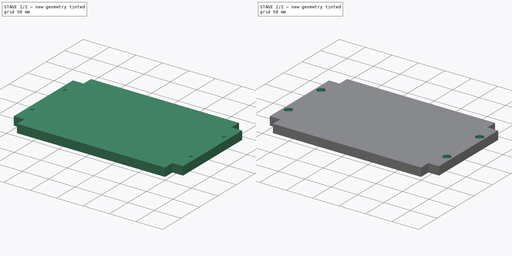
[diagram: build sequence overview — one tinted view per stage of 2, left to right]
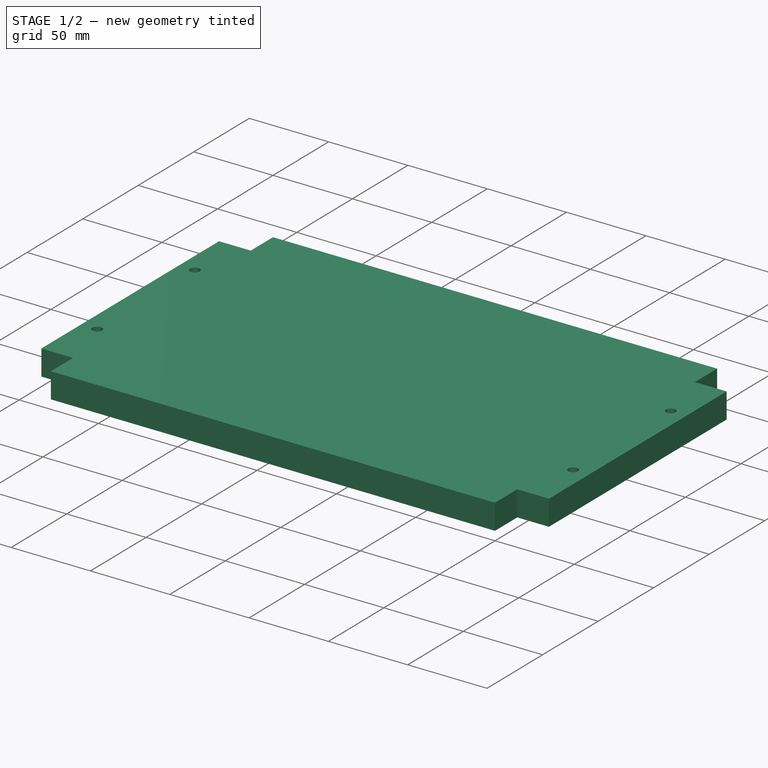
[diagram: stage 1 of 2 — iso view after this stage's code; geometry added in this stage tinted green]
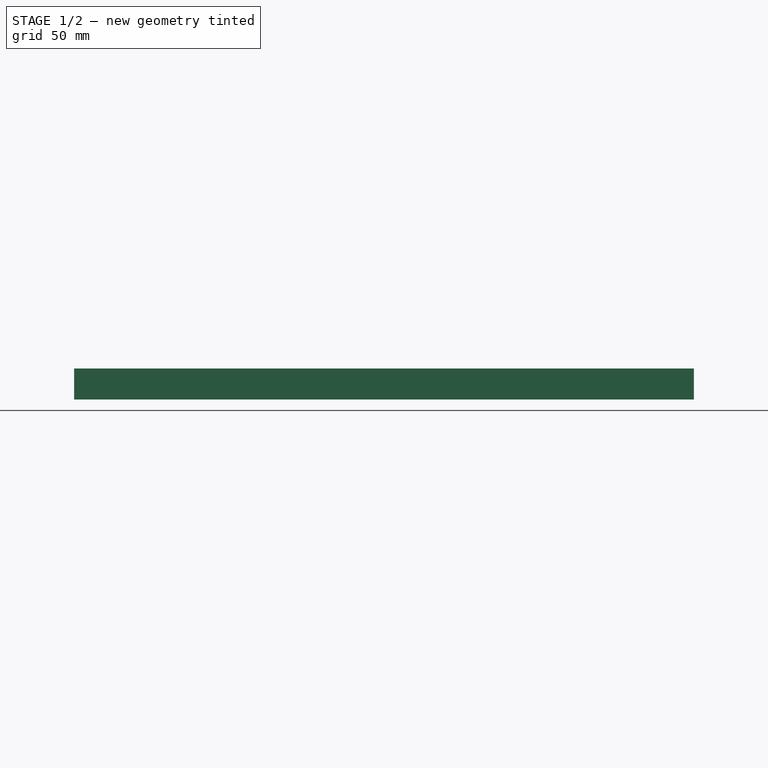
[diagram: stage 1 of 2 — front view after this stage's code; geometry added in this stage tinted green]
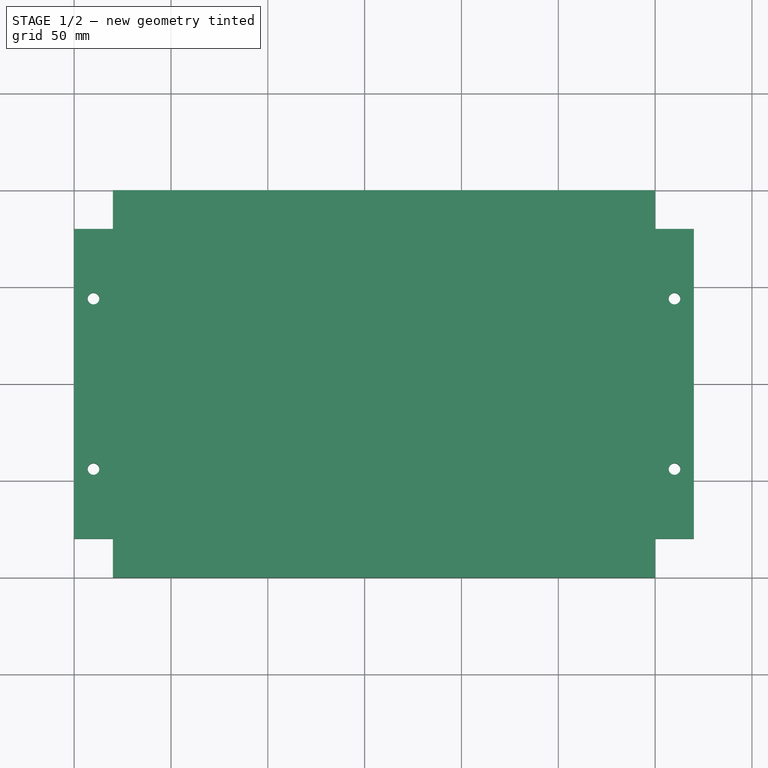
[diagram: stage 1 of 2 — top view after this stage's code; geometry added in this stage tinted green]
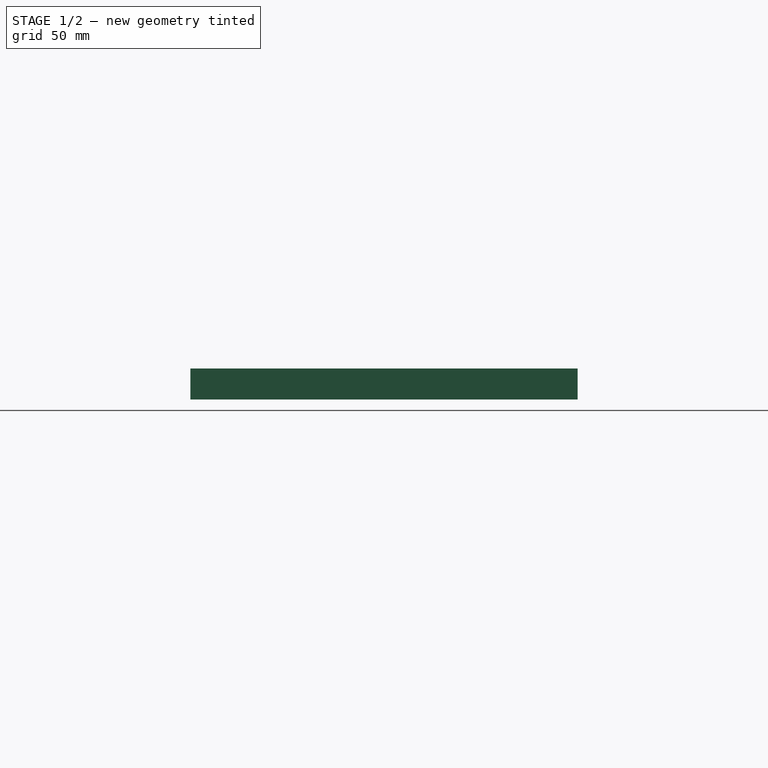
[diagram: stage 1 of 2 — right view after this stage's code; geometry added in this stage tinted green]
FCSTD DOCUMENT  (FreeCAD 0.17R9796 (Git))
Label: top_plate4
License: All rights reserved
LicenseURL: http://en.wikipedia.org/wiki/All_rights_reserved
objects: Sketcher::SketchObject×3, PartDesign::Pocket×3, Part::Box×1, PartDesign::Body×1
note: 11 computed .brp shape members not serialized (recipe doc carries the construction recipe); baked Part::Feature solids carry a one-line shape summary decoded from their .brp

FEATURE [Part::Box] Box  label="Würfel"
  AttacherType = Attacher::AttachEngine3D
  Height = 16
  Length = 320
  Width = 200
FEATURE [Sketcher::SketchObject] Sketch
  MapMode = 5
  Placement = pos=(0,0,16) rot=(0,0,1;0rad)
  Support = -> [Box]
  sketch-geometry (20):
    g0: LineSegment StartX=0 StartY=20 StartZ=0 EndX=20 EndY=20 EndZ=0
    g1: LineSegment StartX=20 StartY=20 StartZ=0 EndX=20 EndY=0 EndZ=0
    g2: LineSegment StartX=20 StartY=0 StartZ=0 EndX=0 EndY=0 EndZ=0
    g3: LineSegment StartX=0 StartY=0 StartZ=0 EndX=0 EndY=20 EndZ=0
    g4: LineSegment StartX=0 StartY=200 StartZ=0 EndX=20 EndY=200 EndZ=0
    g5: LineSegment StartX=20 StartY=200 StartZ=0 EndX=20 EndY=180 EndZ=0
    g6: LineSegment StartX=20 StartY=180 StartZ=0 EndX=0 EndY=180 EndZ=0
    g7: LineSegment StartX=0 StartY=180 StartZ=0 EndX=0 EndY=200 EndZ=0
    g8: LineSegment StartX=300 StartY=200 StartZ=0 EndX=320 EndY=200 EndZ=0
    g9: LineSegment StartX=320 StartY=200 StartZ=0 EndX=320 EndY=180 EndZ=0
    g10: LineSegment StartX=320 StartY=180 StartZ=0 EndX=300 EndY=180 EndZ=0
    g11: LineSegment StartX=300 StartY=180 StartZ=0 EndX=300 EndY=200 EndZ=0
    g12: LineSegment StartX=300 StartY=20 StartZ=0 EndX=320 EndY=20 EndZ=0
    g13: LineSegment StartX=320 StartY=20 StartZ=0 EndX=320 EndY=0 EndZ=0
    g14: LineSegment StartX=320 StartY=0 StartZ=0 EndX=300 EndY=0 EndZ=0
    g15: LineSegment StartX=300 StartY=0 StartZ=0 EndX=300 EndY=20 EndZ=0
    g16: Circle CenterX=10 CenterY=56 CenterZ=0 NormalX=0 NormalY=0 NormalZ=1 Radius=3
    g17: Circle CenterX=10 CenterY=144 CenterZ=0 NormalX=0 NormalY=0 NormalZ=1 Radius=3
    g18: Circle CenterX=310 CenterY=144 CenterZ=0 NormalX=0 NormalY=0 NormalZ=1 Radius=3
    g19: Circle CenterX=310 CenterY=56 CenterZ=0 NormalX=0 NormalY=0 NormalZ=1 Radius=3
  constraints (59):
    c: Coincident(g0,g1)
    c: Coincident(g1,g2)
    c: Coincident(g2,g3)
    c: Coincident(g3,g0)
    c: Horizontal(g0)
    c: Horizontal(g2)
    c: Vertical(g1)
    c: Vertical(g3)
    c: DistanceX(g0,g0) = 20
    c: DistanceY(g1,g1) = 20
    c: Coincident(g2,g-1)
    c: Coincident(g4,g5)
    c: Coincident(g5,g6)
    c: Coincident(g6,g7)
    c: Coincident(g7,g4)
    c: Horizontal(g4)
    c: Horizontal(g6)
    c: Vertical(g5)
    c: Vertical(g7)
    c: DistanceY(g-1,g4) = 200
    c: DistanceX(g0,g6) = 0
    c: DistanceX(g4,g4) = 20
    c: DistanceY(g5,g5) = 20
    c: Coincident(g8,g9)
    c: Coincident(g9,g10)
    c: Coincident(g10,g11)
    c: Coincident(g11,g8)
    c: Horizontal(g8)
    c: Horizontal(g10)
    c: Vertical(g9)
    c: Vertical(g11)
    c: DistanceX(g8,g8) = 20
    c: DistanceY(g9,g9) = 20
    c: DistanceX(g4,g8) = 320
    c: DistanceY(g8,g4) = 0
    c: Coincident(g12,g13)
    c: Coincident(g13,g14)
    c: Coincident(g14,g15)
    c: Coincident(g15,g12)
    c: Horizontal(g12)
    c: Horizontal(g14)
    c: Vertical(g13)
    c: Vertical(g15)
    c: DistanceX(g12,g12) = 20
    c: DistanceY(g13,g13) = 20
    c: DistanceY(g1,g14) = 0
    c: DistanceX(g-1,g13) = 320
    c: DistanceX(g16,g0) = 10
    c: DistanceY(g1,g16) = 56
    c: Radius(g16) = 3
    c: DistanceY(g17,g5) = 36
    c: DistanceX(g17,g5) = 10
    c: Radius(g17) = 3
    c: DistanceX(g18,g9) = 10
    c: DistanceY(g18,g10) = 36
    c: Radius(g18) = 3
    c: DistanceX(g19,g12) = 10
    c: DistanceY(g12,g19) = 36
    c: Radius(g19) = 3
FEATURE [PartDesign::Pocket] Pocket
  BaseFeature = -> Box
  Length = 16
  Profile = -> Sketch
  Type = 0
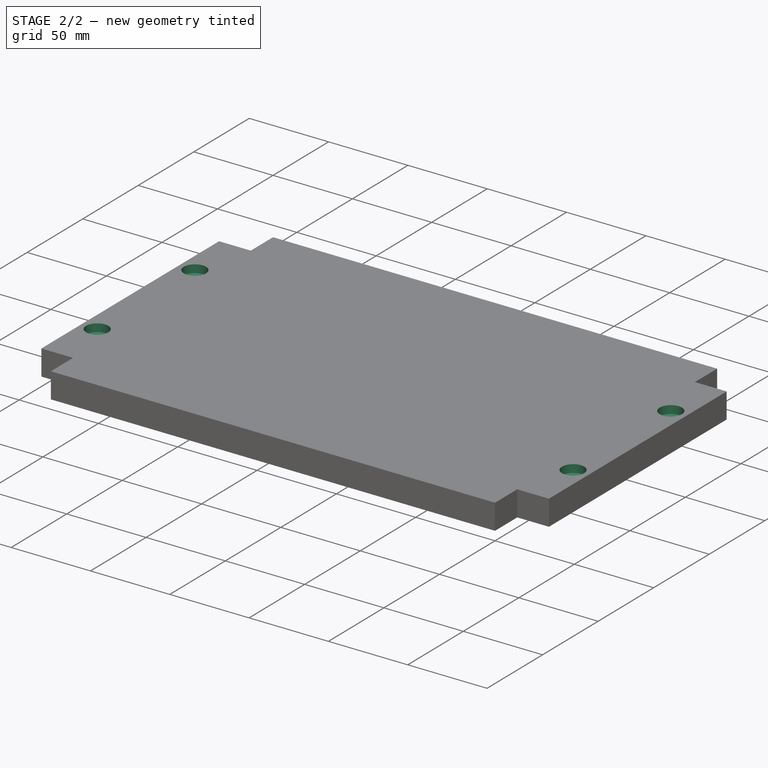
[diagram: stage 2 of 2 — iso view after this stage's code; geometry added in this stage tinted green]
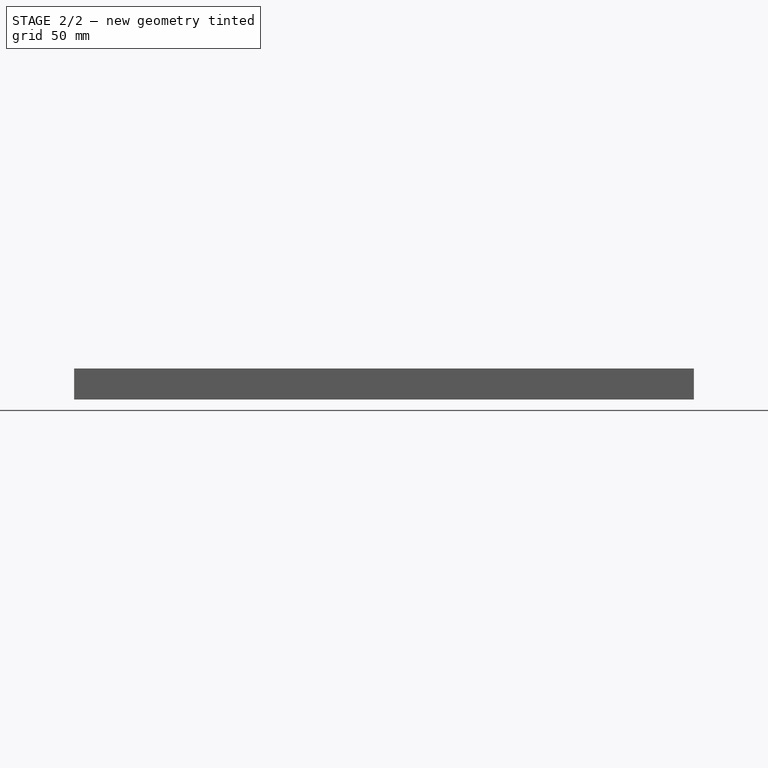
[diagram: stage 2 of 2 — front view after this stage's code; geometry added in this stage tinted green]
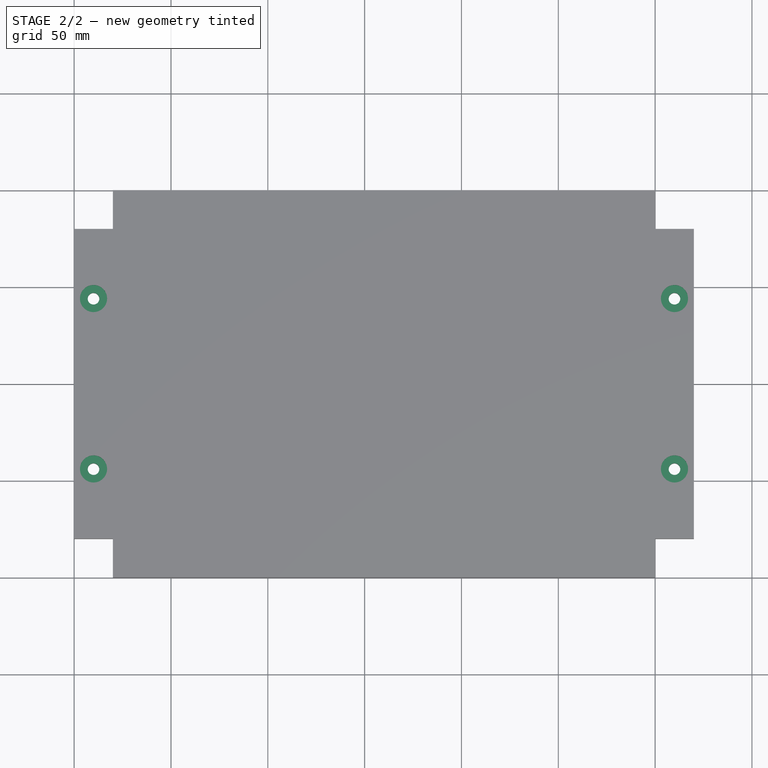
[diagram: stage 2 of 2 — top view after this stage's code; geometry added in this stage tinted green]
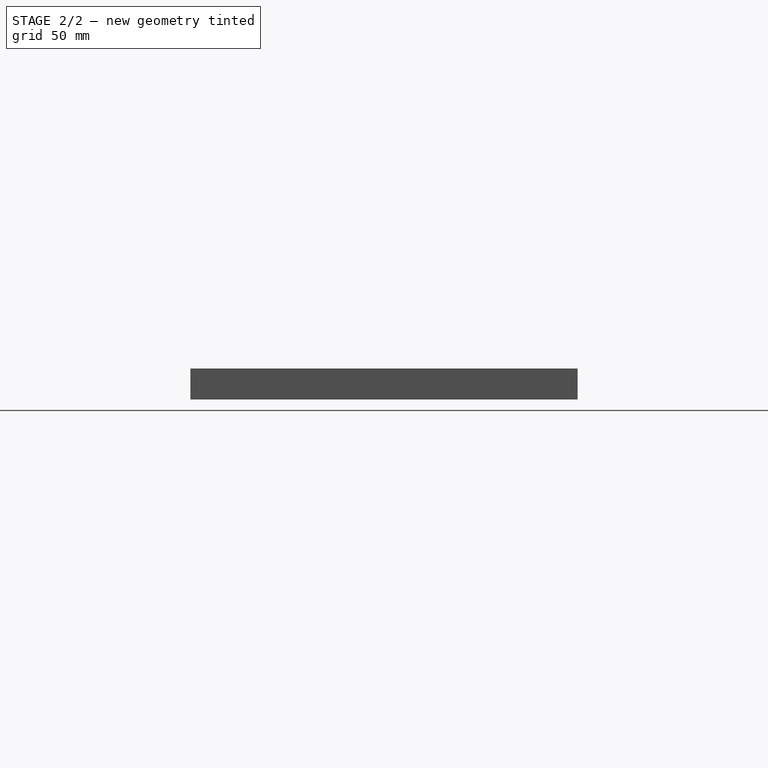
[diagram: stage 2 of 2 — right view after this stage's code; geometry added in this stage tinted green]
FEATURE [Sketcher::SketchObject] Sketch001
  MapMode = 5
  Placement = pos=(0,0,16) rot=(0,0,1;0rad)
  Support = -> [Pocket]
  sketch-geometry (4):
    g0: Circle CenterX=10 CenterY=144 CenterZ=0 NormalX=0 NormalY=0 NormalZ=1 Radius=7
    g1: Circle CenterX=10 CenterY=56 CenterZ=0 NormalX=0 NormalY=0 NormalZ=1 Radius=7
    g2: Circle CenterX=310 CenterY=144 CenterZ=0 NormalX=0 NormalY=0 NormalZ=1 Radius=7
    g3: Circle CenterX=310 CenterY=56 CenterZ=0 NormalX=0 NormalY=0 NormalZ=1 Radius=7
  constraints (6):
    c: DistanceY(g-1,g1) = 56
    c: DistanceX(g-1,g1) = 10
    c: Radius(g1) = 7
    c: Equal(g0,g1)
    c: Equal(g0,g2)
    c: Equal(g2,g3)
FEATURE [PartDesign::Pocket] Pocket001
  BaseFeature = -> Pocket
  Length = 5
  Profile = -> Sketch001
  Type = 0
FEATURE [Sketcher::SketchObject] Sketch003
  MapMode = 5
  Placement = pos=(0,0,16) rot=(0,0,1;0rad)
  Support = -> [Pocket001]
  sketch-geometry (16):
    g0: LineSegment StartX=0 StartY=20 StartZ=0 EndX=20 EndY=20 EndZ=0
    g1: LineSegment StartX=20 StartY=20 StartZ=0 EndX=20 EndY=0 EndZ=0
    g2: LineSegment StartX=20 StartY=0 StartZ=0 EndX=0 EndY=0 EndZ=0
    g3: LineSegment StartX=0 StartY=0 StartZ=0 EndX=0 EndY=20 EndZ=0
    g4: LineSegment StartX=0 StartY=200 StartZ=0 EndX=20 EndY=200 EndZ=0
    g5: LineSegment StartX=20 StartY=200 StartZ=0 EndX=20 EndY=180 EndZ=0
    g6: LineSegment StartX=20 StartY=180 StartZ=0 EndX=0 EndY=180 EndZ=0
    g7: LineSegment StartX=0 StartY=180 StartZ=0 EndX=0 EndY=200 EndZ=0
    g8: LineSegment StartX=300 StartY=200 StartZ=0 EndX=320 EndY=200 EndZ=0
    g9: LineSegment StartX=320 StartY=200 StartZ=0 EndX=320 EndY=180 EndZ=0
    g10: LineSegment StartX=320 StartY=180 StartZ=0 EndX=300 EndY=180 EndZ=0
    g11: LineSegment StartX=300 StartY=180 StartZ=0 EndX=300 EndY=200 EndZ=0
    g12: LineSegment StartX=300 StartY=20 StartZ=0 EndX=320 EndY=20 EndZ=0
    g13: LineSegment StartX=320 StartY=20 StartZ=0 EndX=320 EndY=0 EndZ=0
    g14: LineSegment StartX=320 StartY=0 StartZ=0 EndX=300 EndY=0 EndZ=0
    g15: LineSegment StartX=300 StartY=0 StartZ=0 EndX=300 EndY=20 EndZ=0
  constraints (49):
    c: Coincident(g0,g1)
    c: Coincident(g1,g2)
    c: Coincident(g2,g3)
    c: Coincident(g3,g0)
    c: Horizontal(g0)
    c: Horizontal(g2)
    c: Vertical(g1)
    c: Vertical(g3)
    c: Coincident(g2,g-1)
    c: DistanceY(g1,g1) = 20
    c: DistanceX(g0,g0) = 20
    c: Coincident(g4,g5)
    c: Coincident(g5,g6)
    c: Coincident(g6,g7)
    c: Coincident(g7,g4)
    c: Horizontal(g4)
    c: Horizontal(g6)
    c: Vertical(g5)
    c: Vertical(g7)
    c: DistanceY(g0,g6) = 160
    c: Equal(g5,g1)
    c: Equal(g0,g6)
    c: Coincident(g8,g9)
    c: Coincident(g9,g10)
    c: Coincident(g10,g11)
    c: Coincident(g11,g8)
    c: Horizontal(g8)
    c: Horizontal(g10)
    c: Vertical(g9)
    c: Vertical(g11)
    c: DistanceX(g-1,g9) = 320
    c: Equal(g5,g11)
    c: DistanceY(g-1,g8) = 200
    c: Equal(g6,g10)
    c: Coincident(g12,g13)
    c: Coincident(g13,g14)
    c: Coincident(g14,g15)
    c: Coincident(g15,g12)
    c: Horizontal(g12)
    c: Horizontal(g14)
    c: Vertical(g13)
    c: Vertical(g15)
    c: DistanceY(g14,g8) = 200
    c: Equal(g15,g11)
    c: Equal(g12,g10)
    c: Equal(g12,g10)
    c: DistanceX(g0,g12) = 320
    c: Equal(g0,g6)
    c: DistanceX(g6,g0) = 0
FEATURE [PartDesign::Pocket] Pocket002
  BaseFeature = -> Pocket001
  Length = 16
  Profile = -> Sketch003
  Type = 0
FEATURE [PartDesign::Body] Body
  BaseFeature = -> Box
  Group = -> [Sketch,Pocket,Sketch001,Pocket001,Sketch003,Pocket002]
  Origin = -> BodyOrigin
  Tip = -> Pocket002
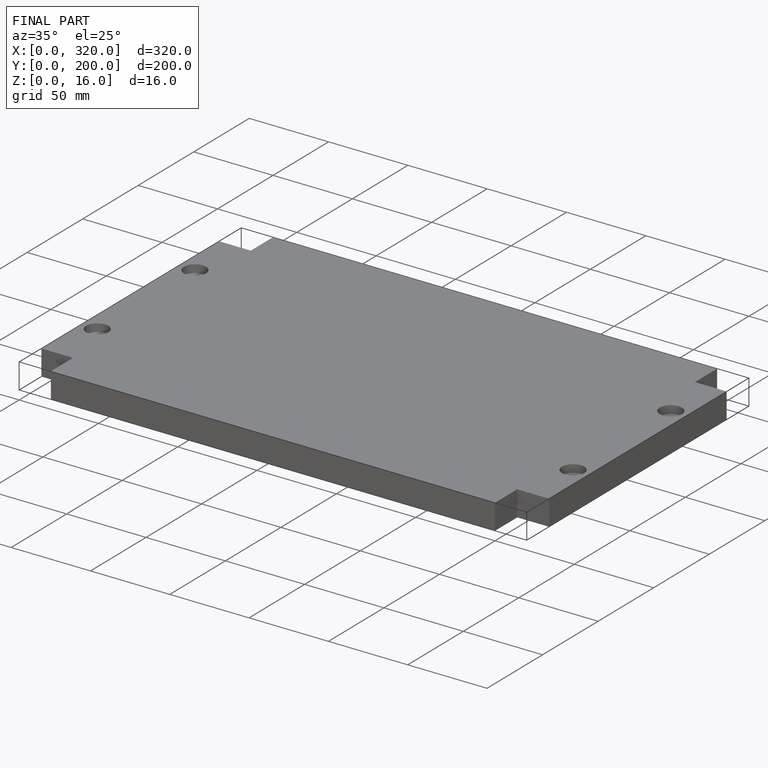
[diagram: finished part — iso view with bounding-box wireframe]
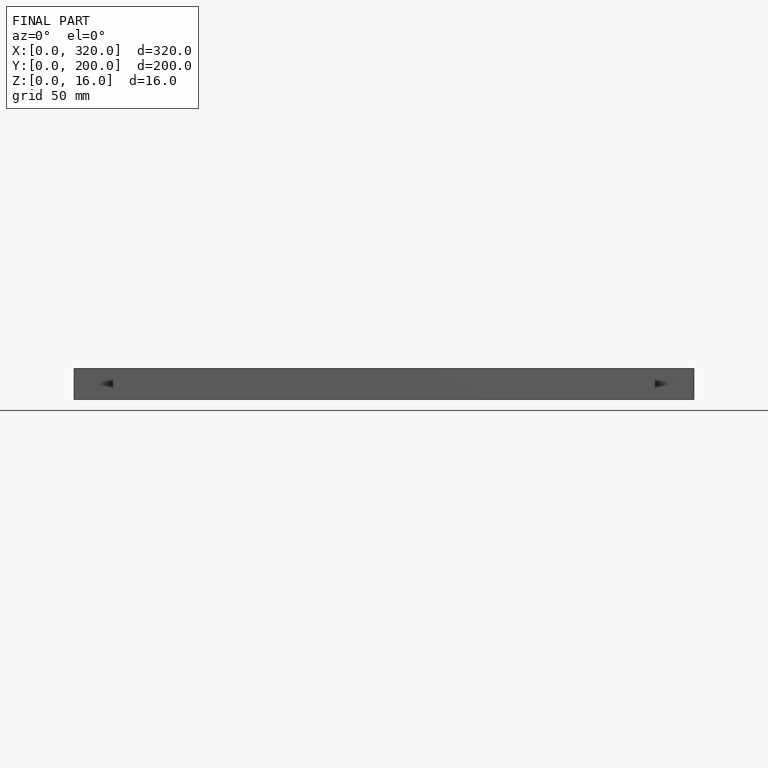
[diagram: finished part — front view with bounding-box wireframe]
